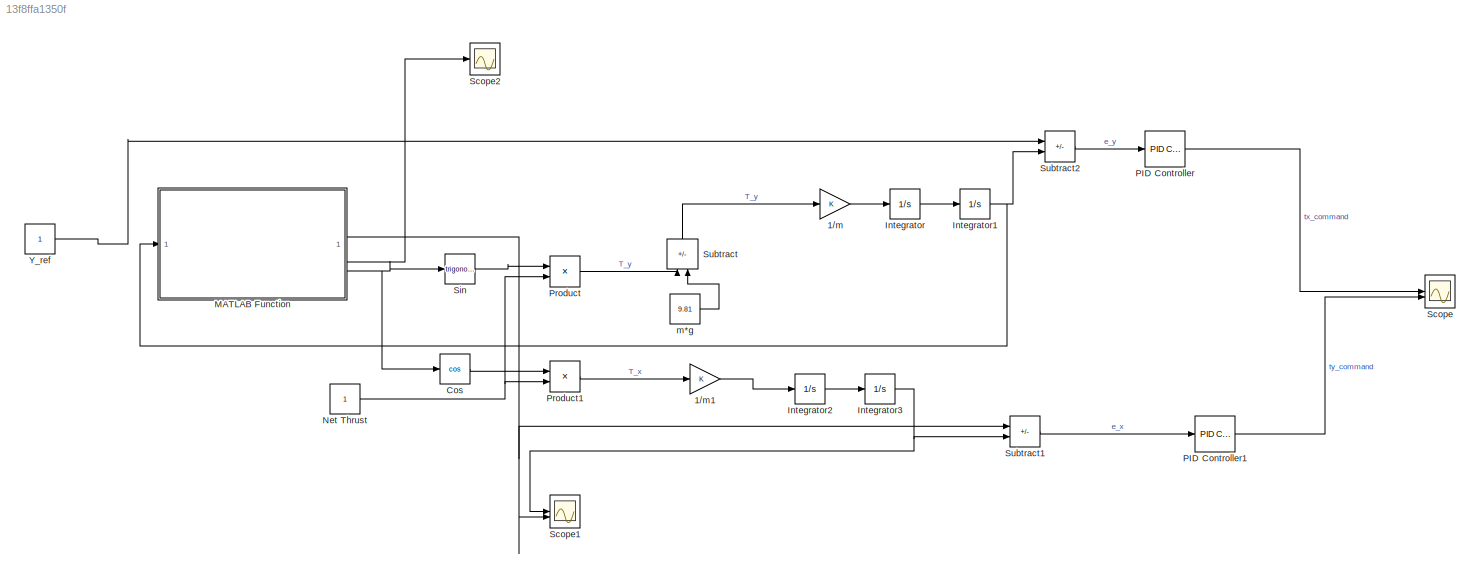
MODEL slx_13f8ffa1350f
KIND model
CONFIG AbsTol = auto
CONFIG EnableMultiTasking = off
CONFIG FixedStep = auto
CONFIG MaxStep = auto
CONFIG MinStep = auto
CONFIG RelTol = 1e-3
CONFIG SampleTimeConstraint = Unconstrained
CONFIG SolverName = VariableStepAuto
CONFIG StartTime = 0.0
CONFIG StopTime = 100
BLOCK [Gain] 1//m
BLOCK [Gain] 1//m1
BLOCK [Trigonometry] Cos
  Operator = cos
BLOCK [Integrator] Integrator
BLOCK [Integrator] Integrator1
BLOCK [Integrator] Integrator2
BLOCK [Integrator] Integrator3
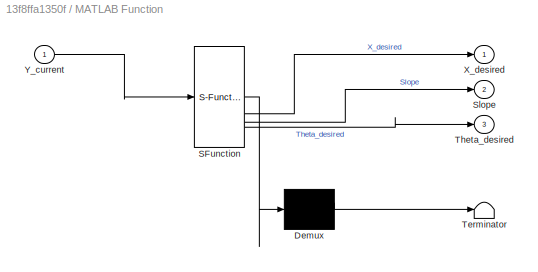
BLOCK [SubSystem] MATLAB Function
  ErrorFcn = Stateflow.Translate.translate
  PermitHierarchicalResolution = ExplicitOnly
  SFBlockType = MATLAB Function
  TreatAsAtomicUnit = on
BLOCK [Demux] MATLAB Function/ Demux 
  Outputs = 1
BLOCK [S-Function] MATLAB Function/ SFunction 
  EnableBusSupport = on
  FunctionName = sf_sfun
  PortCounts = [1 4]
  SFcnIsStateOwnerBlock = off
  SFunctionDeploymentMode = off
  Tag = Stateflow S-Function 2
BLOCK [Terminator] MATLAB Function/ Terminator 
BLOCK [Outport] MATLAB Function/Slope
  Port = 2
BLOCK [Outport] MATLAB Function/Theta_desired
  Port = 3
BLOCK [Outport] MATLAB Function/X_desired
BLOCK [Inport] MATLAB Function/Y_current
BLOCK [Constant] Net Thrust
BLOCK [Reference] PID Controller  REF=slpidlib/PID Controller
  LibrarySourceBlock = simulink/Continuous/PID Controller
  SourceBlock = slpidlib/PID Controller
  SourceType = PID 1dof
BLOCK [Reference] PID Controller1  REF=slpidlib/PID Controller
  LibrarySourceBlock = simulink/Continuous/PID Controller
  SourceBlock = slpidlib/PID Controller
  SourceType = PID 1dof
BLOCK [Product] Product
BLOCK [Product] Product1
BLOCK [Scope] Scope
  Floating = off
  NumInputPorts = 2
  ScopeSpecificationString = Simulink.scopes.TimeScopeBlockCfg('CurrentConfiguration', extmgr.ConfigurationSet(extmgr.Configuration('Core','General UI',true),extmgr.Configuration('Core','Source UI',true),extmgr.Configuration('Sources','WiredSimulink',true),extmgr.Configuration('Visuals','Time Domain',true,'SerializedDisplays',{struct('MinYLimReal','-306339.58051','MaxYLimReal','1722756.48293','YLabelReal','','MinYLimMag','   ...<+1514ch>
BLOCK [Scope] Scope1
  Floating = off
  NumInputPorts = 2
  ScopeSpecificationString = Simulink.scopes.TimeScopeBlockCfg('CurrentConfiguration', extmgr.ConfigurationSet(extmgr.Configuration('Core','General UI',true),extmgr.Configuration('Core','Source UI',true),extmgr.Configuration('Sources','WiredSimulink',true,'DataLoggingVariableName','ScopeData1'),extmgr.Configuration('Visuals','Time Domain',true,'SerializedDisplays',{struct('MinYLimReal','-1745.36084','MaxYLimReal','892.29852',...<+1547ch>
BLOCK [Scope] Scope2
  Floating = off
  NumInputPorts = 1
  ScopeSpecificationString = Simulink.scopes.TimeScopeBlockCfg('CurrentConfiguration', extmgr.ConfigurationSet(extmgr.Configuration('Core','General UI',true),extmgr.Configuration('Core','Source UI',true),extmgr.Configuration('Sources','WiredSimulink',true,'DataLoggingVariableName','ScopeData2'),extmgr.Configuration('Visuals','Time Domain',true,'SerializedDisplays',{struct('MinYLimReal','-7.20797','MaxYLimReal','66.87177','YLa...<+1515ch>
BLOCK [Trigonometry] Sin
BLOCK [Sum] Subtract
  IconShape = rectangular
  Inputs = +-
  NameLocation = right
BLOCK [Sum] Subtract1
  IconShape = rectangular
  Inputs = +-
BLOCK [Sum] Subtract2
  IconShape = rectangular
  Inputs = +-
BLOCK [Constant] Y_ref
BLOCK [Constant] m*g
  Value = 9.81
LINE 1//m1:1 -> Integrator2:1
LINE 1//m:1 -> Integrator:1
LINE Cos:1 -> Product1:1
NET Integrator1:1 -> MATLAB Function:1, Subtract2:2
LINE Integrator2:1 -> Integrator3:1
NET Integrator3:1 -> Scope1:1, Subtract1:2
LINE Integrator:1 -> Integrator1:1
NET MATLAB Function:1 -> Scope1:2, Subtract1:1
LINE MATLAB Function:2 -> Scope2:1
NET MATLAB Function:3 -> Cos:1, Sin:1
NET Net Thrust:1 -> Product1:2, Product:2
LINE PID Controller1:1 -> Scope:2
LINE PID Controller:1 -> Scope:1
LINE Product1:1 -> 1//m1:1
LINE Product:1 -> Subtract:1
LINE Sin:1 -> Product:1
LINE Subtract1:1 -> PID Controller1:1
LINE Subtract2:1 -> PID Controller:1
LINE Subtract:1 -> 1//m:1
LINE Y_ref:1 -> Subtract2:1
LINE m*g:1 -> Subtract:2
note: NET lines group one-source signal fan-out (src -> all destinations, sorted); 1:1 wires keep LINE
CHART MATLAB Function states=1 transitions=1
  STATE_LABEL 'eML_blk_kernel()'
  STATE_LABEL 'SCRIPT:\nfunction [X_desired, Slope, Theta_desired] = Parabola_Inverse(Y_current)\n% Parabola coefficients (for half parabola)\na = -0.02;   % adjust curvature\nb = 0.2;     % linear scaling term\nc = 0;       % start at ground\n\ndisc = b^2 - 4*a*(c - Y_current);\ndisc = max(disc, 0);  % ensure real roots only\n\nX_desired = (-b + sqrt(disc)) / (2*a);\nSlope = 2*a*X_desired + b;\nTheta_desired = atan(Slope);...<+9ch>'
CHART  states=0 transitions=0
